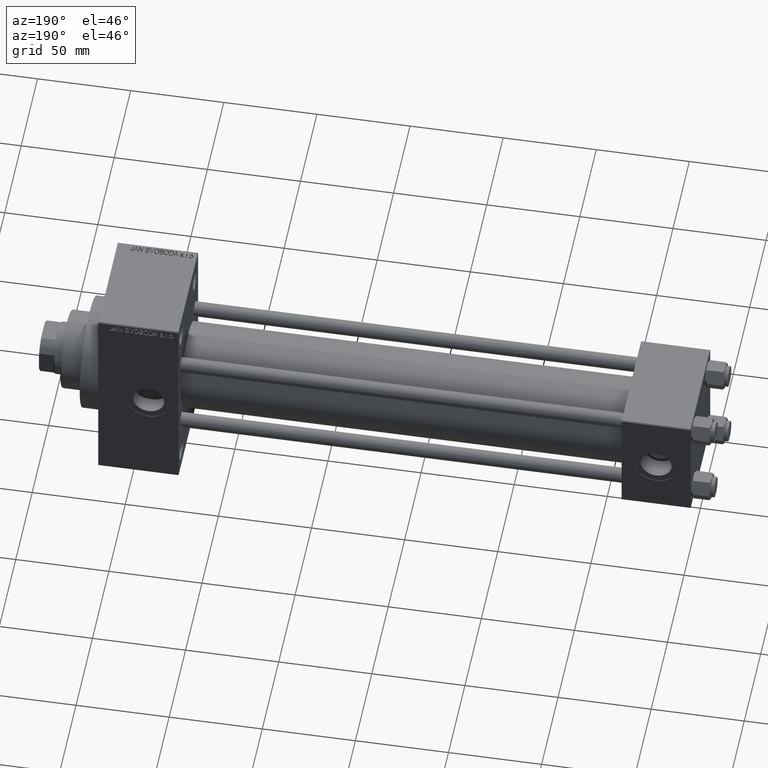
[diagram: clean part render]
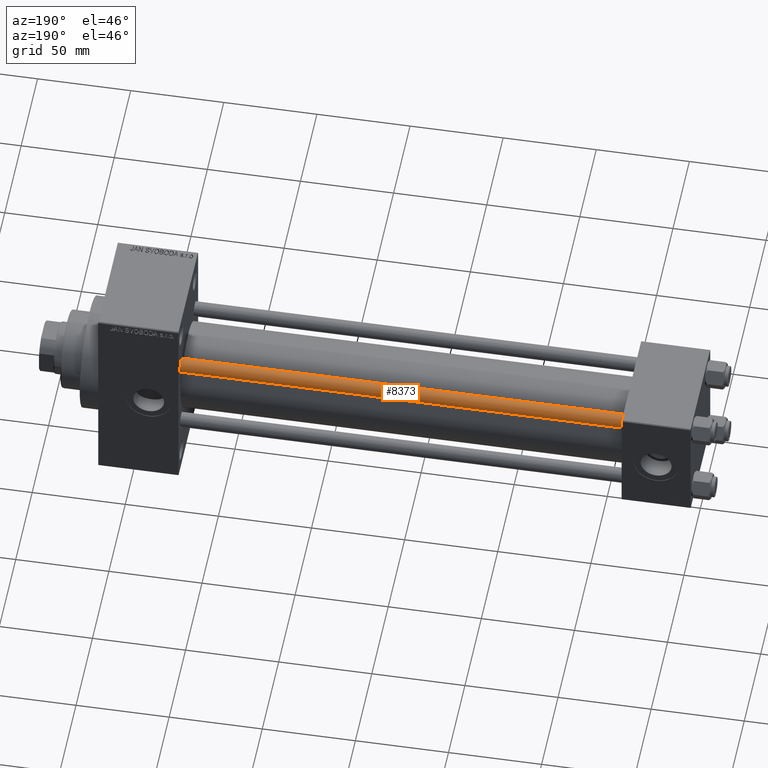
[diagram: same view with one face highlighted and labeled with its STEP entity id]
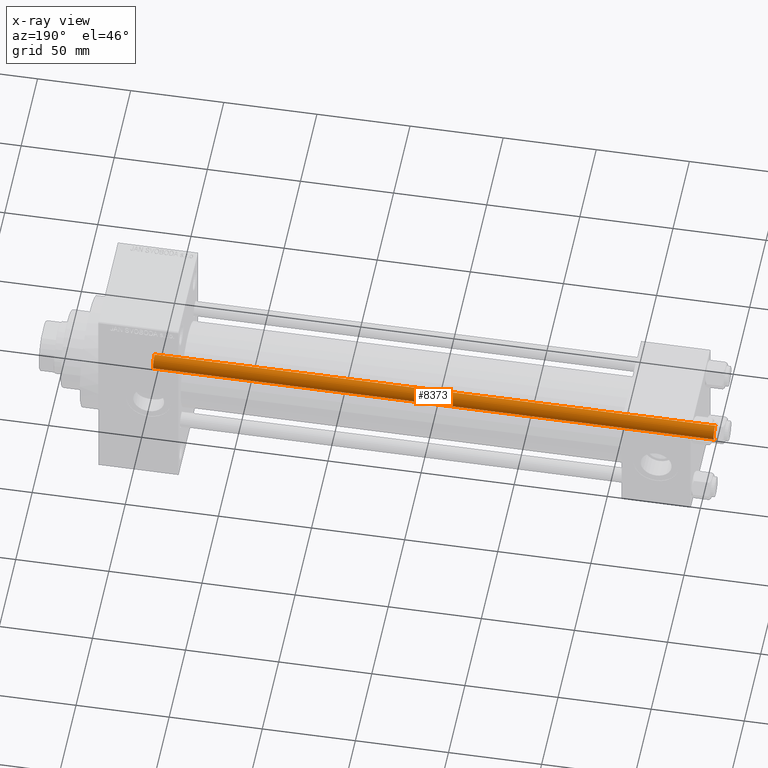
[diagram: x-ray of the same camera — body ghosted, the highlighted face saturated]
A machine part, auxiliary view. The second image highlights one B-rep face of the part: STEP entity #8373.
The next image is the same camera in x-ray: the body ghosted, the highlighted face saturated — about 0% of this face is hidden behind the body in this view.
In plain terms, the highlighted cylindrical surface (edge-blend (fillet) strip) has radius 4 mm, axis along (-1, -0, 0).
Its self-contained STEP definition (entity closure, byte-faithful):
#1493 = CARTESIAN_POINT ( 'NONE',  ( 4.000000000000000000, 4.898587196589412829E-16, 0.5000000000000559552 ) ) ;
#2455 = DIRECTION ( 'NONE',  ( -1.000000000000000000, 0.000000000000000000, 0.000000000000000000 ) ) ;
#5289 = CIRCLE ( 'NONE', #23619, 4.000000000000000000 ) ;
#6679 = LINE ( 'NONE', #32114, #38236 ) ;
#7238 = VERTEX_POINT ( 'NONE', #1493 ) ;
#7782 = VECTOR ( 'NONE', #38751, 1000.000000000000000 ) ;
#8373 = ADVANCED_FACE ( 'NONE', ( #20658 ), #24876, .T. ) ;
#8963 = ORIENTED_EDGE ( 'NONE', *, *, #19990, .F. ) ;
#9563 = DIRECTION ( 'NONE',  ( 0.000000000000000000, 0.000000000000000000, -1.000000000000000000 ) ) ;
#9949 = DIRECTION ( 'NONE',  ( -0.000000000000000000, -0.000000000000000000, -1.000000000000000000 ) ) ;
#10405 = CARTESIAN_POINT ( 'NONE',  ( 0.000000000000000000, 0.000000000000000000, 0.5000000000000559552 ) ) ;
#13922 = CARTESIAN_POINT ( 'NONE',  ( 0.000000000000000000, 0.000000000000000000, 302.0000000000000000 ) ) ;
#16621 = CARTESIAN_POINT ( 'NONE',  ( -4.000000000000000000, 0.000000000000000000, 0.5000000000000559552 ) ) ;
#17498 = DIRECTION ( 'NONE',  ( 1.000000000000000000, 0.000000000000000000, 0.000000000000000000 ) ) ;
#18588 = AXIS2_PLACEMENT_3D ( 'NONE', #13922, #9949, #2455 ) ;
#19525 = CARTESIAN_POINT ( 'NONE',  ( -4.000000000000000000, 0.000000000000000000, 302.0000000000000000 ) ) ;
#19990 = EDGE_CURVE ( 'NONE', #39837, #45467, #27515, .T. ) ;
#20658 = FACE_OUTER_BOUND ( 'NONE', #49233, .T. ) ;
#21374 = DIRECTION ( 'NONE',  ( -0.000000000000000000, -0.000000000000000000, -1.000000000000000000 ) ) ;
#23551 = EDGE_CURVE ( 'NONE', #26591, #7238, #6679, .T. ) ;
#23619 = AXIS2_PLACEMENT_3D ( 'NONE', #28984, #9563, #17498 ) ;
#24876 = CYLINDRICAL_SURFACE ( 'NONE', #18588, 4.000000000000000000 ) ;
#25223 = ORIENTED_EDGE ( 'NONE', *, *, #23551, .T. ) ;
#26097 = DIRECTION ( 'NONE',  ( -0.000000000000000000, -0.000000000000000000, 1.000000000000000000 ) ) ;
#26591 = VERTEX_POINT ( 'NONE', #32978 ) ;
#27515 = LINE ( 'NONE', #19525, #7782 ) ;
#27568 = CIRCLE ( 'NONE', #33920, 4.000000000000000000 ) ;
#28542 = ORIENTED_EDGE ( 'NONE', *, *, #40644, .T. ) ;
#28984 = CARTESIAN_POINT ( 'NONE',  ( 0.000000000000000000, 0.000000000000000000, 301.4999999999999432 ) ) ;
#32114 = CARTESIAN_POINT ( 'NONE',  ( 4.000000000000000000, 4.898587196589412829E-16, 302.0000000000000000 ) ) ;
#32978 = CARTESIAN_POINT ( 'NONE',  ( 4.000000000000000000, 4.898587196589412829E-16, 301.4999999999999432 ) ) ;
#33920 = AXIS2_PLACEMENT_3D ( 'NONE', #10405, #26097, #37328 ) ;
#35686 = EDGE_CURVE ( 'NONE', #7238, #45467, #27568, .T. ) ;
#37328 = DIRECTION ( 'NONE',  ( 1.000000000000000000, 0.000000000000000000, 0.000000000000000000 ) ) ;
#38236 = VECTOR ( 'NONE', #21374, 1000.000000000000000 ) ;
#38751 = DIRECTION ( 'NONE',  ( -0.000000000000000000, -0.000000000000000000, -1.000000000000000000 ) ) ;
#38985 = CARTESIAN_POINT ( 'NONE',  ( -4.000000000000000000, 0.000000000000000000, 301.4999999999999432 ) ) ;
#39837 = VERTEX_POINT ( 'NONE', #38985 ) ;
#40644 = EDGE_CURVE ( 'NONE', #39837, #26591, #5289, .T. ) ;
#44165 = ORIENTED_EDGE ( 'NONE', *, *, #35686, .T. ) ;
#45467 = VERTEX_POINT ( 'NONE', #16621 ) ;
#49233 = EDGE_LOOP ( 'NONE', ( #28542, #25223, #44165, #8963 ) ) ;